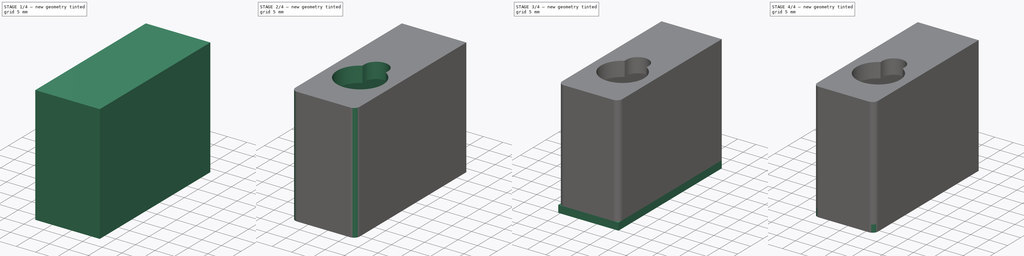
[diagram: build sequence overview — one tinted view per stage of 4, left to right]
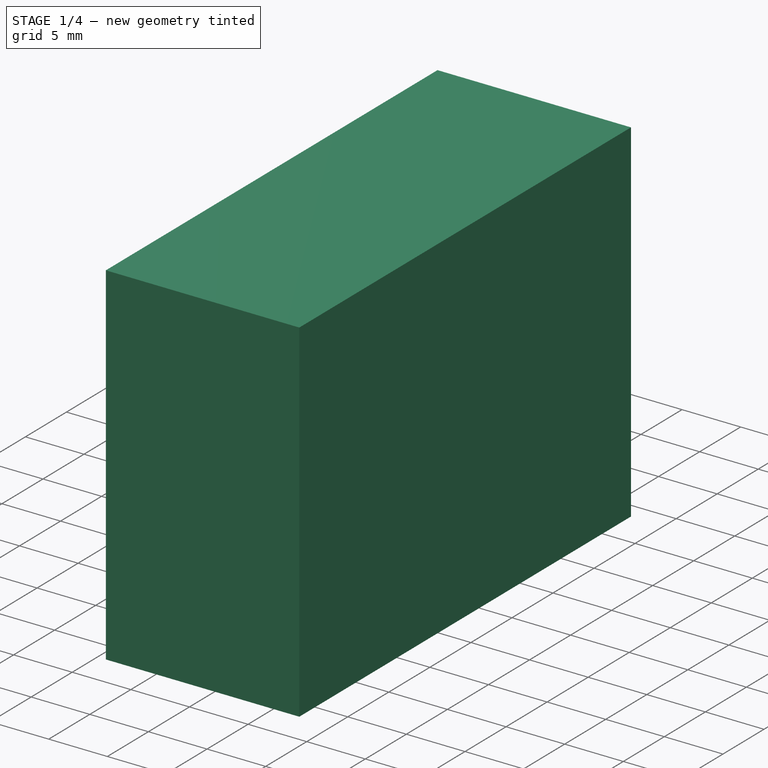
[diagram: stage 1 of 4 — iso view after this stage's code; geometry added in this stage tinted green]
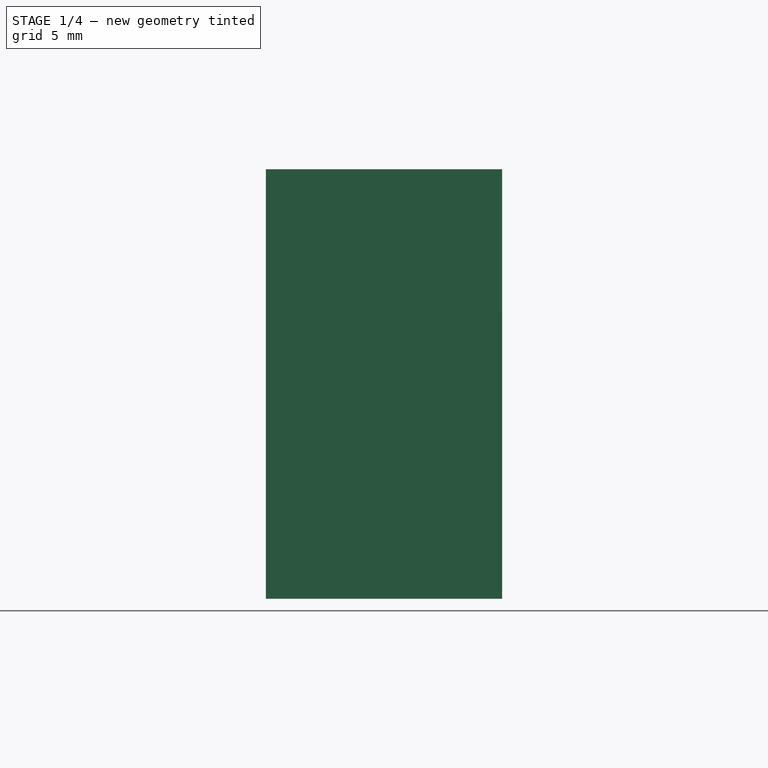
[diagram: stage 1 of 4 — front view after this stage's code; geometry added in this stage tinted green]
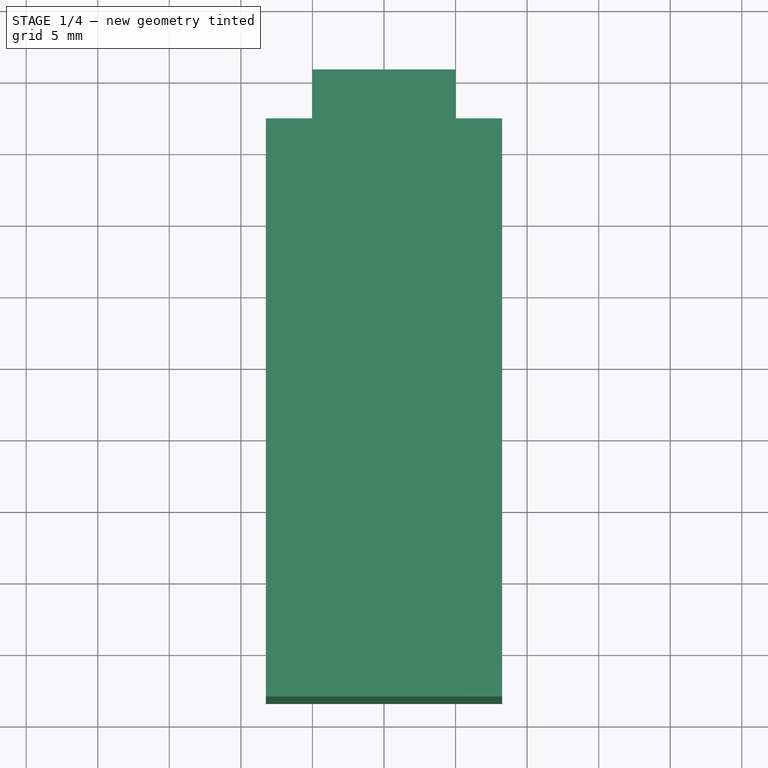
[diagram: stage 1 of 4 — top view after this stage's code; geometry added in this stage tinted green]
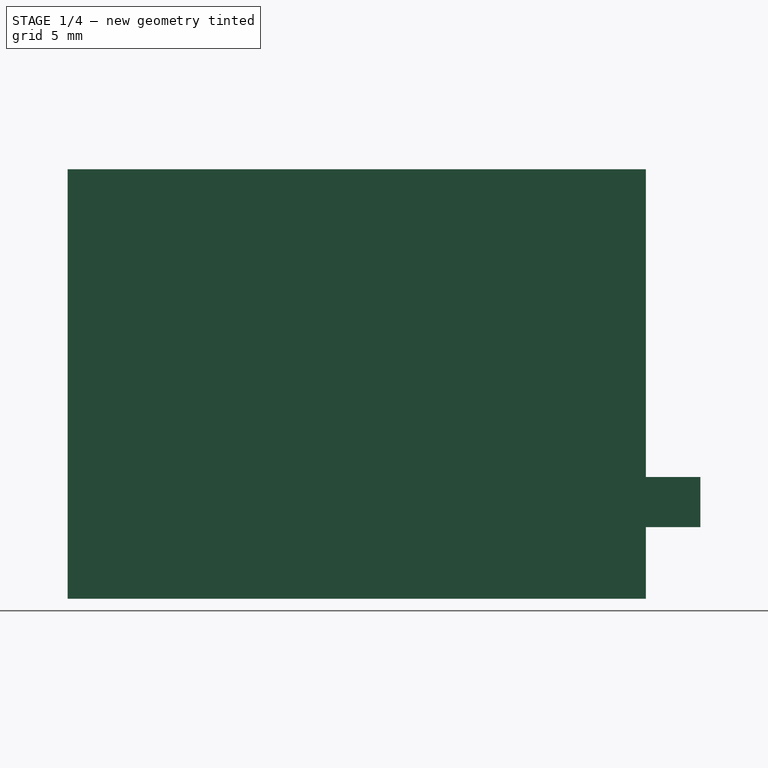
[diagram: stage 1 of 4 — right view after this stage's code; geometry added in this stage tinted green]
FCSTD DOCUMENT  (FreeCAD 0.18R16131 (Git))
Label: Caja servo SG90 (2)
License: Public Domain
LicenseURL: http://en.wikipedia.org/wiki/Public_domain
objects: Sketcher::SketchObject×3, Part::Extrusion×3, Part::Feature×3, PartDesign::Pad×2, Part::Offset2D×2, Part::MultiFuse×2, Part::Part2DObjectPython×2, Part::Fillet×2, Part::Box×2, Part::Cut×2, PartDesign::Body×1, Part::Thickness×1, App::DocumentObjectGroup×1
note: 27 computed .brp shape members not serialized (recipe doc carries the construction recipe); baked Part::Feature solids carry a one-line shape summary decoded from their .brp

FEATURE [Sketcher::SketchObject] Sketch  label="Boceto cabeza servo"
  MapMode = 5
  Support = -> [XY_Plane]
  sketch-geometry (8):
    g0: ArcOfCircle CenterX=0 CenterY=0 CenterZ=0 NormalX=0 NormalY=0 NormalZ=1 AngleXU=0 Radius=5.9 StartAngle=2.10421 EndAngle=7.32057
    g1: ArcOfCircle CenterX=0 CenterY=5.9 CenterZ=0 NormalX=0 NormalY=0 NormalZ=1 AngleXU=0 Radius=3 StartAngle=3e-16 EndAngle=3.14159
    g2: LineSegment StartX=3 StartY=5.9 StartZ=0 EndX=3 EndY=5.08035 EndZ=0
    g3: LineSegment StartX=-3 StartY=5.9 StartZ=0 EndX=-3 EndY=5.08035 EndZ=0
    g4: LineSegment StartX=-6.25 StartY=-11.4 StartZ=0 EndX=6.25 EndY=-11.4 EndZ=0
    g5: LineSegment StartX=-6.25 StartY=25 StartZ=0 EndX=-6.25 EndY=-11.4 EndZ=0
    g6: LineSegment StartX=-6.25 StartY=25 StartZ=0 EndX=6.25 EndY=25 EndZ=0
    g7: LineSegment StartX=6.25 StartY=25 StartZ=0 EndX=6.25 EndY=-11.4 EndZ=0
  constraints (22):
    c: Coincident(g0,g-1)
    c: Radius(g0) = 5.9
    c: PointOnObject(g1,g-2)
    c: PointOnObject(g1,g0)
    c: Coincident(g2,g0)
    c: Vertical(g2)
    c: Coincident(g3,g0)
    c: Vertical(g3)
    c: Radius(g1) = 3
    c: DistanceX(g4,g4) = 12.5
    c: Symmetric(g4,g4,g-2)
    c: Vertical(g5)
    c: Coincident(g5,g4)
    c: Coincident(g6,g5)
    c: Horizontal(g6)
    c: Coincident(g7,g6)
    c: Coincident(g7,g4)
    c: Vertical(g7)
    c: Tangent(g3,g1) = -1.5708
    c: Tangent(g1,g2) = 1.5708
    c: DistanceY(g0,g6) = 25
    c: DistanceY(g4,g0) = 11.4
FEATURE [PartDesign::Pad] Pad  label="extrusion Parte superios servo (cabeza)"
  Length = 4
  Length2 = 100
  Profile = -> Sketch
  Refine = true
  Type = 0
FEATURE [Sketcher::SketchObject] Sketch001  label="Boceto soprte tornillos servo"
  ExternalGeometry = -> [Pad]
  MapMode = 5
  Placement = pos=(0,0,0) rot=(1,0,0;3.14159rad)
  Support = -> [Pad]
  sketch-geometry (11):
    g0: LineSegment StartX=-6.25 StartY=11.4 StartZ=0 EndX=6.25 EndY=11.4 EndZ=0
    g1: LineSegment StartX=6.25 StartY=5.9 StartZ=0 EndX=-6.25 EndY=5.9 EndZ=0
    g2: LineSegment StartX=6.25 StartY=11.4 StartZ=0 EndX=6.25 EndY=5.9 EndZ=0
    g3: LineSegment StartX=-6.25 StartY=11.4 StartZ=0 EndX=-6.25 EndY=5.9 EndZ=0
    g4: LineSegment StartX=6.25 StartY=-25 StartZ=0 EndX=-6.25 EndY=-25 EndZ=0
    g5: LineSegment StartX=-6.25 StartY=-25 StartZ=0 EndX=-6.25 EndY=-17.6 EndZ=0
    g6: LineSegment StartX=-6.25 StartY=-17.6 StartZ=0 EndX=6.25 EndY=-17.6 EndZ=0
    g7: LineSegment StartX=6.25 StartY=-17.6 StartZ=0 EndX=6.25 EndY=-25 EndZ=0
    g8: LineSegment [constr] StartX=6.25 StartY=-17.6 StartZ=0 EndX=6.25 EndY=5.9 EndZ=0
    g9: Circle CenterX=0 CenterY=7.9 CenterZ=0 NormalX=0 NormalY=0 NormalZ=1 AngleXU=0 Radius=0.75
    g10: Circle CenterX=0 CenterY=-19.6 CenterZ=0 NormalX=0 NormalY=0 NormalZ=1 AngleXU=0 Radius=0.75
  constraints (31):
    c: Horizontal(g0)
    c: Horizontal(g1)
    c: PointOnObject(g1,g-5)
    c: Tangent(g1,g-6)
    c: Vertical(g2)
    c: Coincident(g0,g2)
    c: DistanceY(g2,g2) = 5.5
    c: Coincident(g3,g0)
    c: Coincident(g3,g1)
    c: Vertical(g3)
    c: PointOnObject(g1,g-4)
    c: Coincident(g1,g2)
    c: Coincident(g4,g7)
    c: Horizontal(g4)
    c: Coincident(g5,g4)
    c: PointOnObject(g5,g-4)
    c: Coincident(g6,g5)
    c: Horizontal(g6)
    c: Coincident(g7,g6)
    c: Coincident(g8,g6)
    c: Coincident(g8,g1)
    c: Vertical(g8)
    c: DistanceY(g8,g8) = 23.5
    c: PointOnObject(g4,g-5)
    c: Coincident(g4,g-4)
    c: PointOnObject(g9,g-2)
    c: Radius(g9) = 0.75
    c: Radius(g10) = 0.75
    c: DistanceY(g10,g9) = 27.5
    c: DistanceY(g1,g9) = 2
    c: PointOnObject(g10,g-2)
FEATURE [PartDesign::Pad] Pad001  label="Extrusion soporte tornillos"
  BaseFeature = -> Pad
  Length = 4
  Length2 = 100
  Profile = -> Sketch001
  Refine = true
  Type = 0
FEATURE [Sketcher::SketchObject] Sketch002
  ExternalGeometry = -> [Pad001]
  MapMode = 5
  Placement = pos=(0,0,4) rot=(0,0,1;0rad)
  Support = -> [Pad001]
  sketch-geometry (4):
    g0: LineSegment StartX=-6.25 StartY=25 StartZ=0 EndX=6.25 EndY=25 EndZ=0
    g1: LineSegment StartX=6.25 StartY=25 StartZ=0 EndX=6.25 EndY=-11.4 EndZ=0
    g2: LineSegment StartX=6.25 StartY=-11.4 StartZ=0 EndX=-6.25 EndY=-11.4 EndZ=0
    g3: LineSegment StartX=-6.25 StartY=-11.4 StartZ=0 EndX=-6.25 EndY=25 EndZ=0
  constraints (10):
    c: Coincident(g0,g1)
    c: Coincident(g1,g2)
    c: Coincident(g2,g3)
    c: Coincident(g3,g0)
    c: Horizontal(g0)
    c: Horizontal(g2)
    c: Vertical(g1)
    c: Vertical(g3)
    c: Coincident(g0,g-3)
    c: Coincident(g1,g-4)
FEATURE [PartDesign::Body] Body  label="Soporte servo caja"
  Group = -> [Sketch,Pad,Sketch001,Pad001,Sketch002]
  Origin = -> Origin
  Tip = -> Pad001
FEATURE [Part::Offset2D] Offset2D
  Fill = false
  Intersection = true
  Join = 2
  Mode = 1
  SelfIntersection = false
  Source = -> Sketch002
  Value = 2
FEATURE [Part::Extrusion] Extrude
  Base = -> Offset2D
  Dir = (0,0,1)
  DirMode = 2
  FaceMakerClass = Part::FaceMakerBullseye
  LengthFwd = 30
  LengthRev = 0
  Reversed = true
  Solid = true
  Symmetric = false
FEATURE [Part::Box] Box001  label="Cubo001"
  AttacherType = Attacher::AttachEngine3D
  Height = 10
  Length = 10
  Placement = pos=(-5,30.8,-21) rot=(1,0,0;1.5708rad)
  Width = 3.5
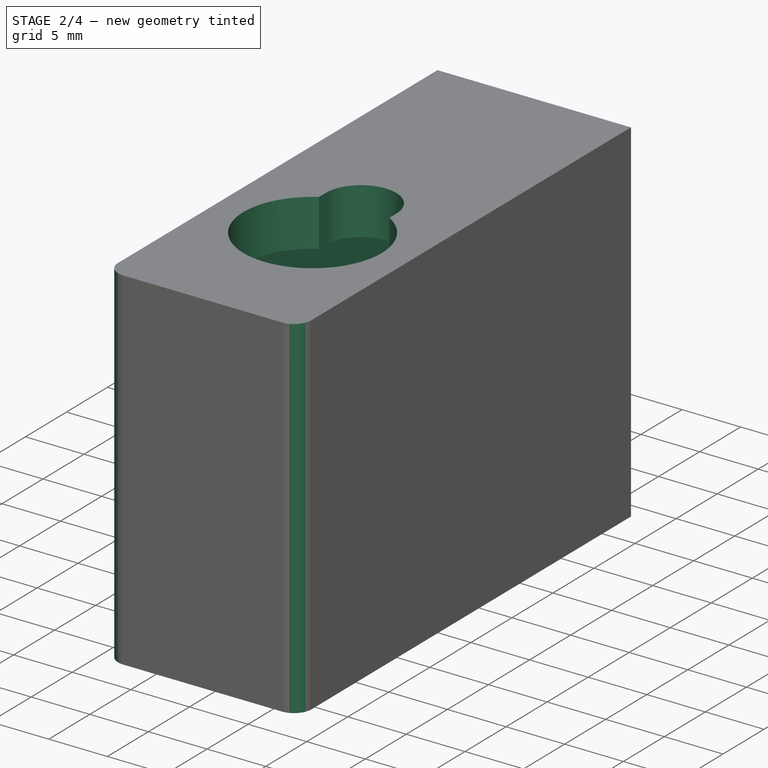
[diagram: stage 2 of 4 — iso view after this stage's code; geometry added in this stage tinted green]
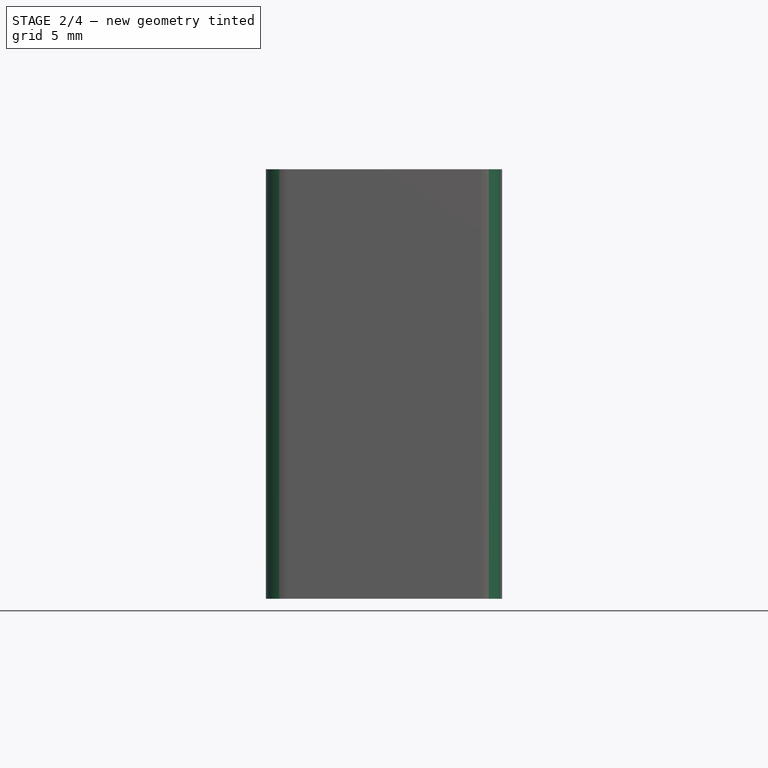
[diagram: stage 2 of 4 — front view after this stage's code; geometry added in this stage tinted green]
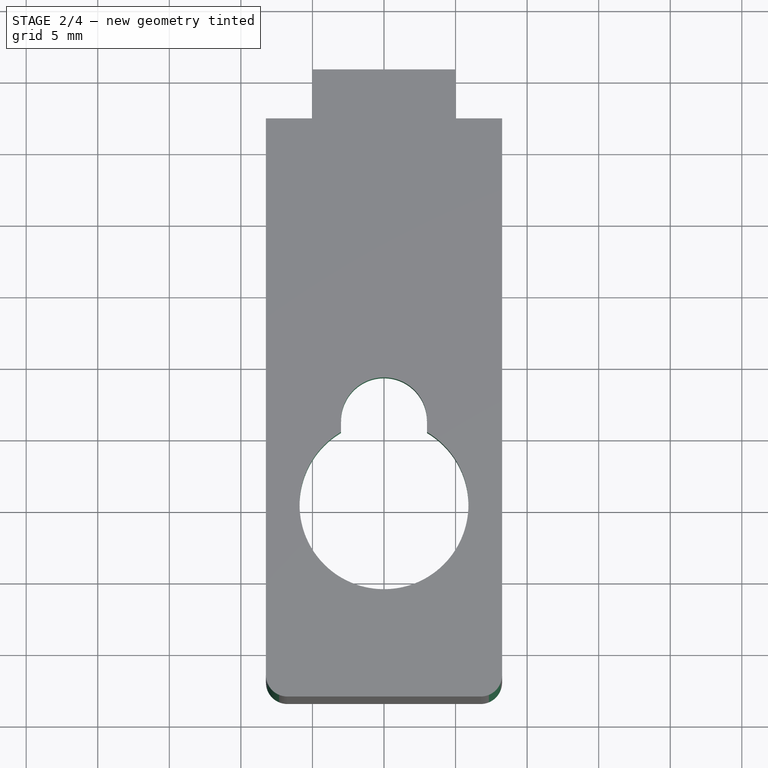
[diagram: stage 2 of 4 — top view after this stage's code; geometry added in this stage tinted green]
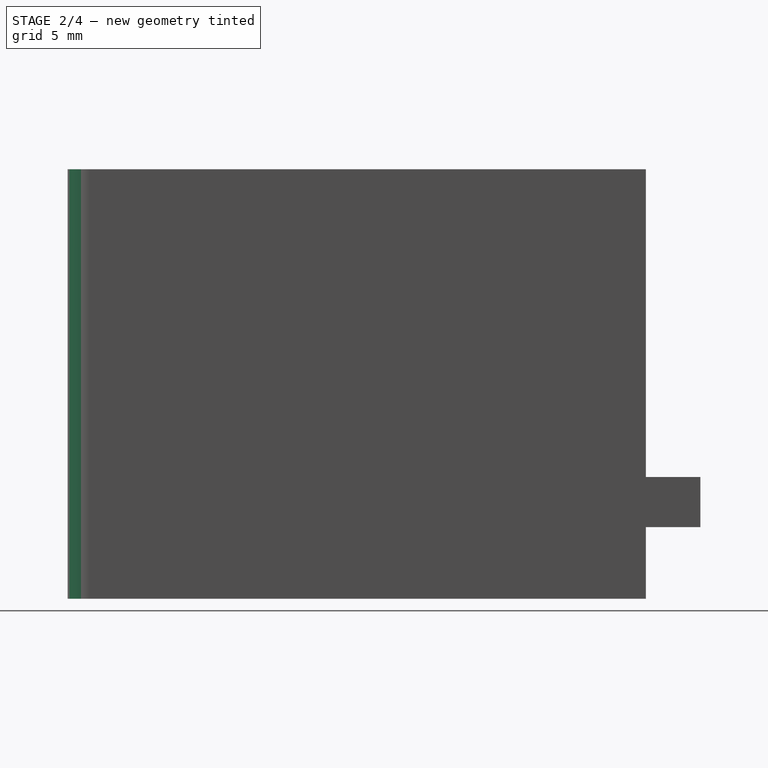
[diagram: stage 2 of 4 — right view after this stage's code; geometry added in this stage tinted green]
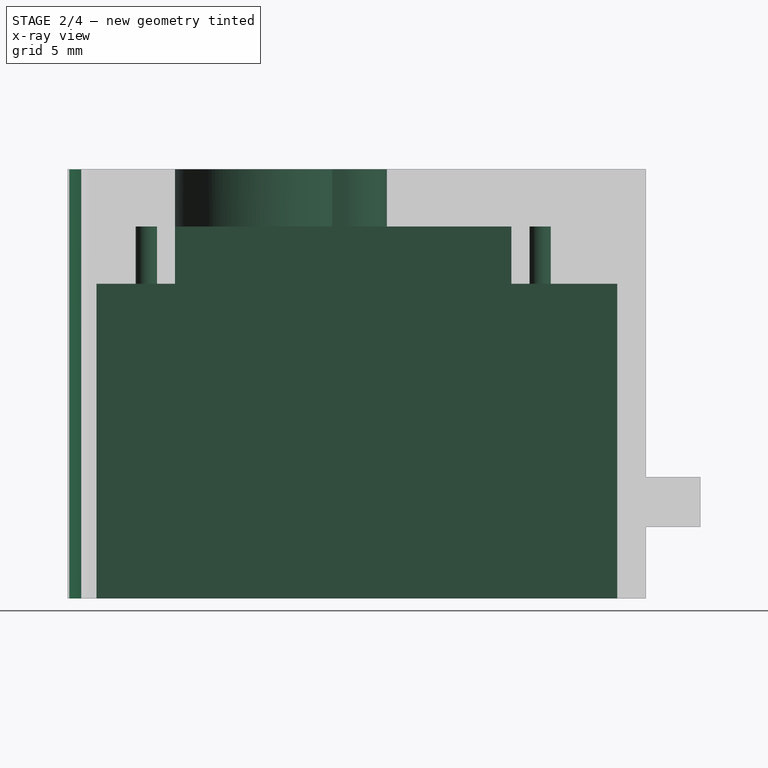
[diagram: stage 2 of 4 — x-ray composite at the right view; earlier geometry ghosted, this stage's added geometry solid]
FEATURE [Part::Thickness] Thickness  label="Caja base"
  Faces = -> Extrude [Face5,Face6]
  Intersection = false
  Join = 0
  Mode = 0
  SelfIntersection = false
  Value = -2
FEATURE [Part::MultiFuse] Fusion  label="caja completa sion redondear"
  Refine = true
  Shapes = -> [Pad001,Thickness]
FEATURE [Part::Fillet] Fillet  label="Redondeo esquinas caja"
  Base = -> Fusion
  Edges = 2 edges r=1.5: [Edge48,Edge50]
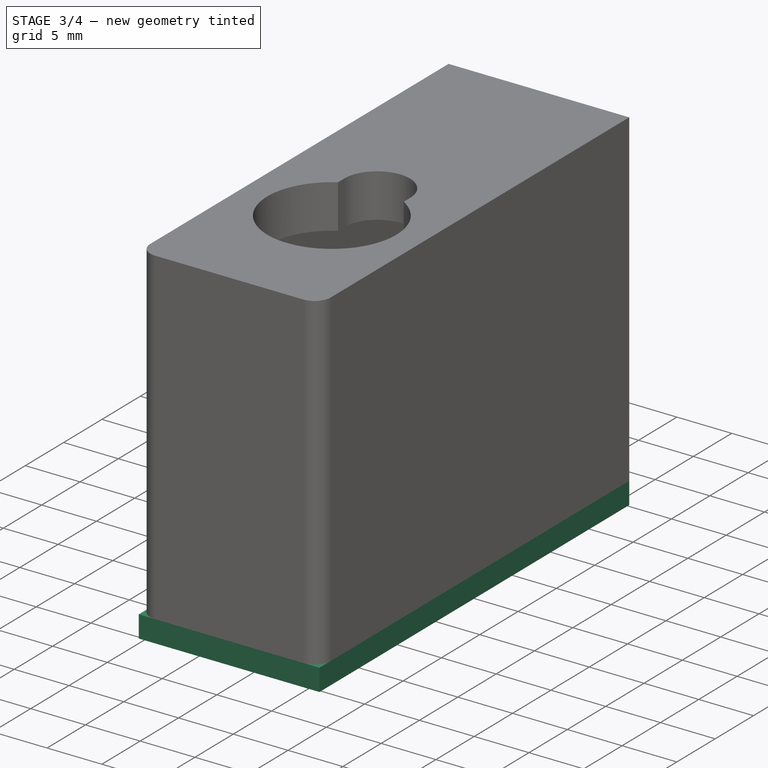
[diagram: stage 3 of 4 — iso view after this stage's code; geometry added in this stage tinted green]
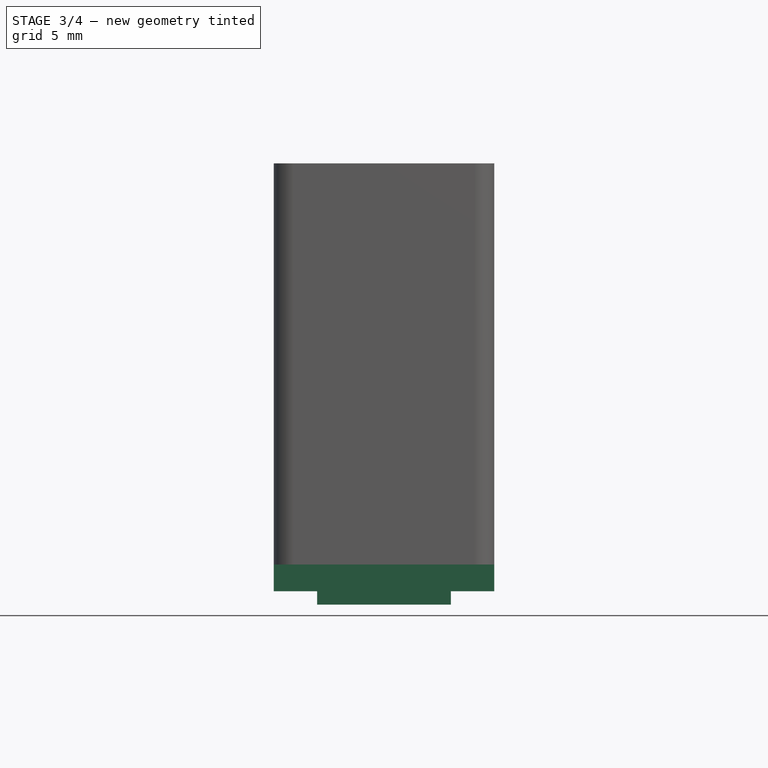
[diagram: stage 3 of 4 — front view after this stage's code; geometry added in this stage tinted green]
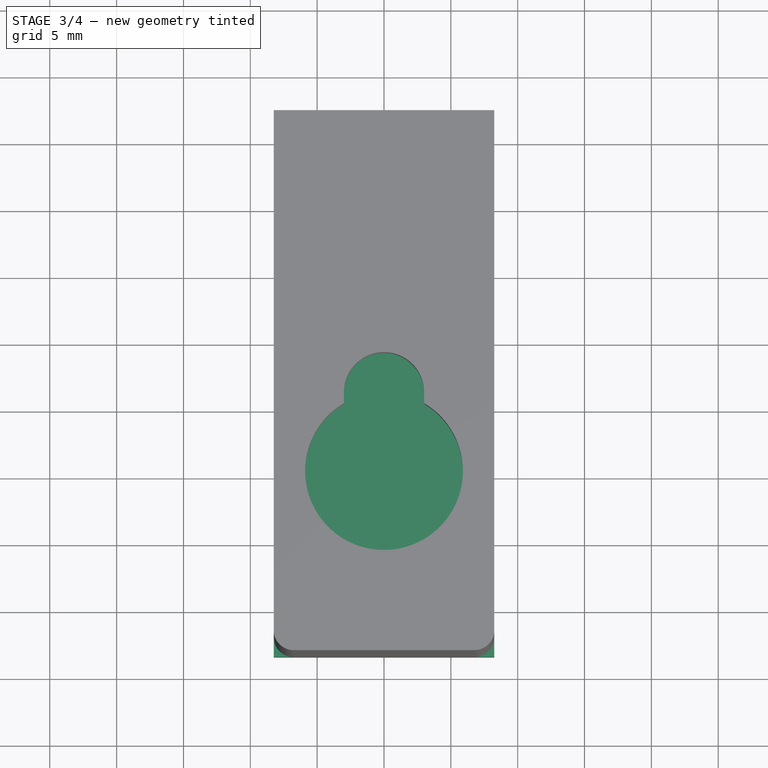
[diagram: stage 3 of 4 — top view after this stage's code; geometry added in this stage tinted green]
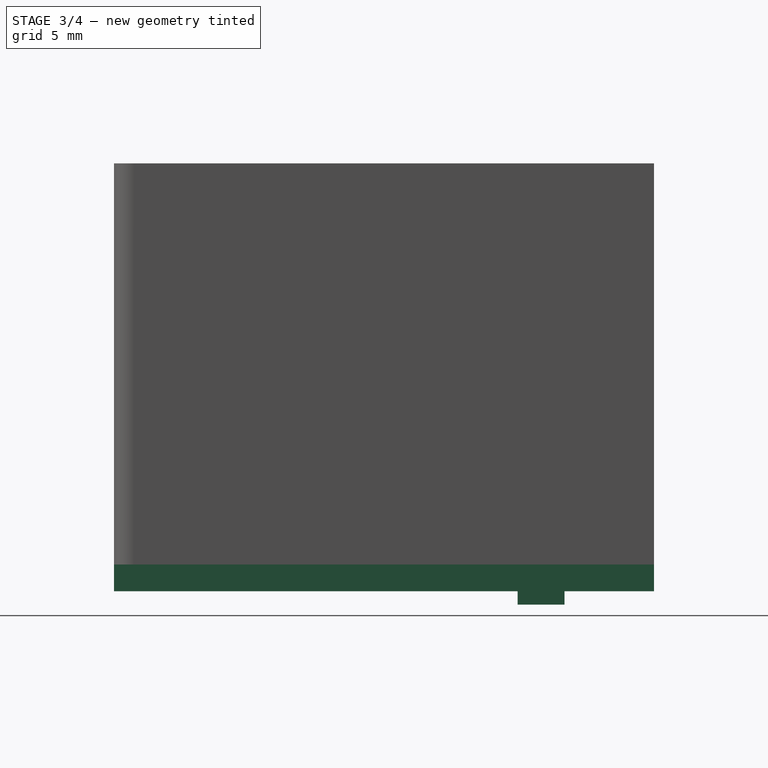
[diagram: stage 3 of 4 — right view after this stage's code; geometry added in this stage tinted green]
FEATURE [Part::Part2DObjectPython] Wire  label="Exterior tapa"  # Draft 2D object (typed FeaturePython)
  ChamferSize = 0
  Closed = true
  End = (8.25,-13.4,-26)
  FilletRadius = 0
  Length = 113.8
  MakeFace = true
  Placement = pos=(8.25,27,-26) rot=(1,0,0;3.14159rad)
  Points = (4) [(0,0,0),(-16.5,0,0),(-16.5,40.4,0),(-3.55271e-15,40.4,0)]
  Start = (8.25,27,-26)
  Subdivisions = 0
  Support = -> [Fusion]
FEATURE [Part::Extrusion] Extrude003  label="Extrusion exterior tapa"
  Base = -> Wire
  Dir = (0,0,-1)
  DirMode = 2
  FaceMakerClass = Part::FaceMakerBullseye
  LengthFwd = 2
  LengthRev = 0
  Solid = false
  Symmetric = false
FEATURE [Part::Box] Box  label="Cubo"
  AttacherType = Attacher::AttachEngine3D
  Height = 10
  Length = 10
  Placement = pos=(-5,16.8,-29) rot=(0,0,1;0rad)
  Width = 3.5
FEATURE [Part::Cut] Cut001  label="Caja con salida cable"
  Base = -> Fillet
  Refine = true
  Tool = -> Box001
FEATURE [App::DocumentObjectGroup] Group  label="SRC"
  Group = -> [Line,Cut,Cut001,Body]
FEATURE [Part::Feature] Fusion007001  label="Servo-sg90-final"
  Placement = pos=(0,16.65,-22.7) rot=(0,0,1;3.14159rad)
  shape: bbox 11.8 x 32.4 x 29.9 mm, 77 faces (baked)
FEATURE [Part::Feature] Cut001002  label="Tapa"
  shape: bbox 16.5 x 40.4 x 4 mm, 17 faces (baked)
FEATURE [Part::Feature] Cut001003  label="Caja"
  shape: bbox 16.5 x 40.4 x 30 mm, 29 faces (baked)
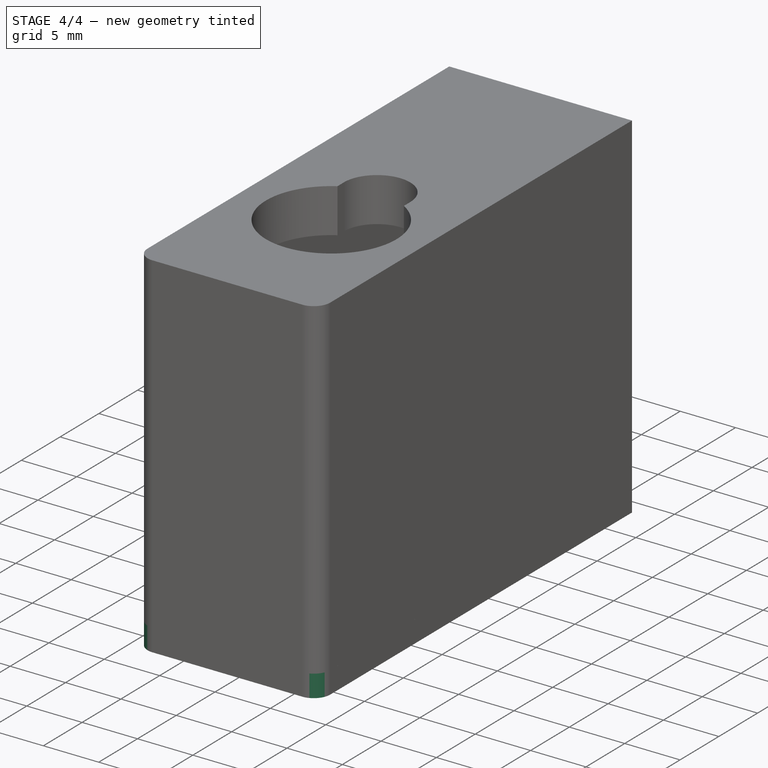
[diagram: stage 4 of 4 — iso view after this stage's code; geometry added in this stage tinted green]
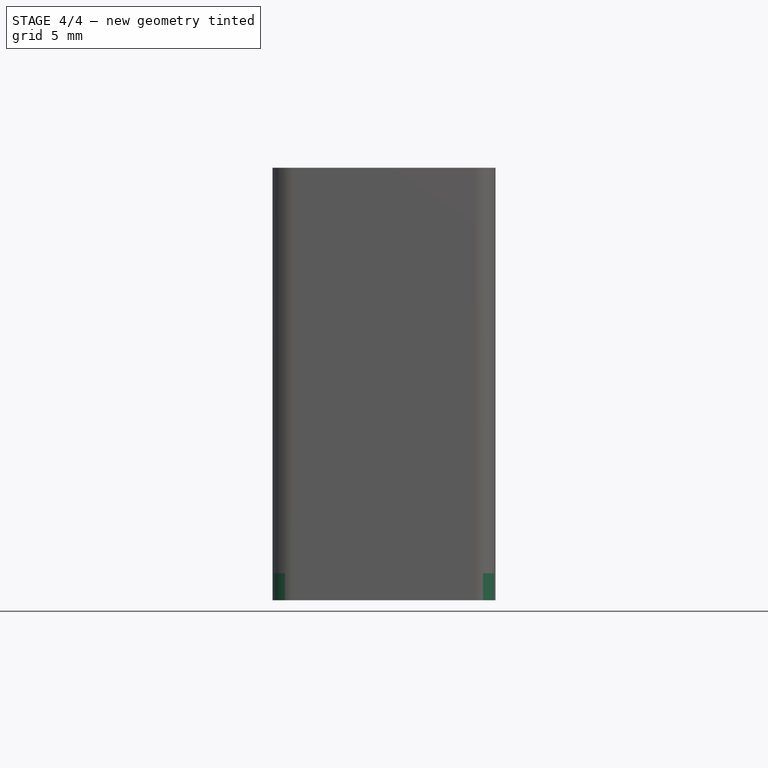
[diagram: stage 4 of 4 — front view after this stage's code; geometry added in this stage tinted green]
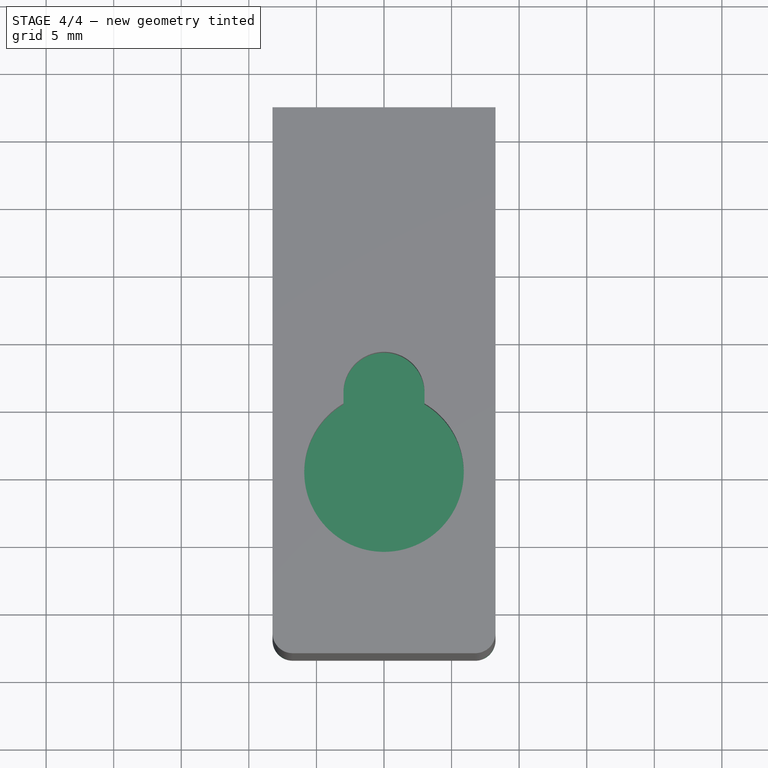
[diagram: stage 4 of 4 — top view after this stage's code; geometry added in this stage tinted green]
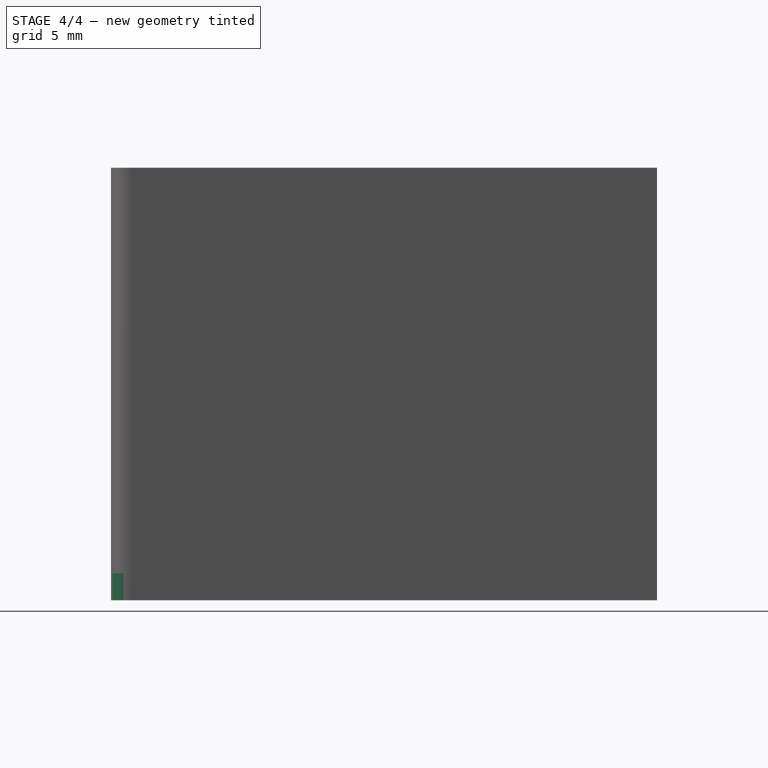
[diagram: stage 4 of 4 — right view after this stage's code; geometry added in this stage tinted green]
FEATURE [Part::Offset2D] Offset2D001  label="Offset interior tapa"
  Fill = false
  Intersection = false
  Join = 2
  Mode = 1
  SelfIntersection = false
  Value = -0.1
FEATURE [Part::Extrusion] Extrude002  label="Interior tapa"
  Base = -> Offset2D001
  Dir = (0,0,1)
  DirMode = 2
  FaceMakerClass = Part::FaceMakerBullseye
  LengthFwd = 2
  LengthRev = 0
  Reversed = true
  Solid = true
  Symmetric = false
FEATURE [Part::MultiFuse] Fusion001  label="Tapa sin redondear"
  Refine = true
  Shapes = -> [Extrude002,Extrude003]
FEATURE [Part::Fillet] Fillet001  label="Redondeo esquina tapa"
  Base = -> Fusion001
  Edges = 2 edges r=1.5: [Edge5,Edge8]
FEATURE [Part::Part2DObjectPython] Line  # Draft 2D object (typed FeaturePython)
  ChamferSize = 0
  Closed = false
  End = (-1.6e-15,16.8,-28)
  FilletRadius = 0
  Length = 10.2
  MakeFace = true
  Placement = pos=(-4e-15,27,-28) rot=(1,0,0;3.14159rad)
  Points = (2) [(0,0,0),(2.43736e-15,10.2,0)]
  Start = (-3.9e-15,27,-28)
  Subdivisions = 0
  Support = -> [Fillet001]
FEATURE [Part::Cut] Cut  label="Tapa con salida cable"
  Base = -> Fillet001
  Refine = true
  Tool = -> Box
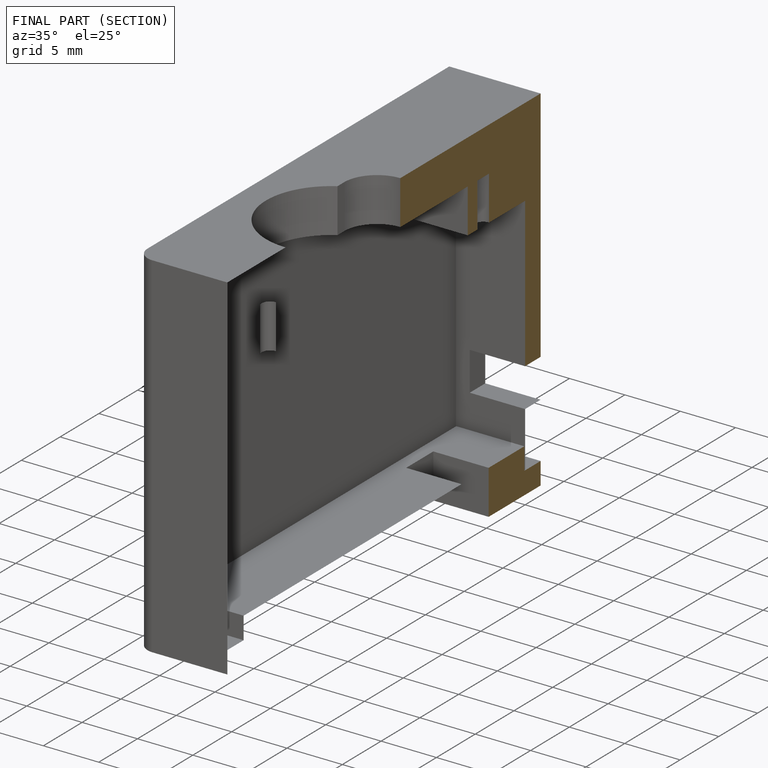
[diagram: finished part — half-section view (interior)]
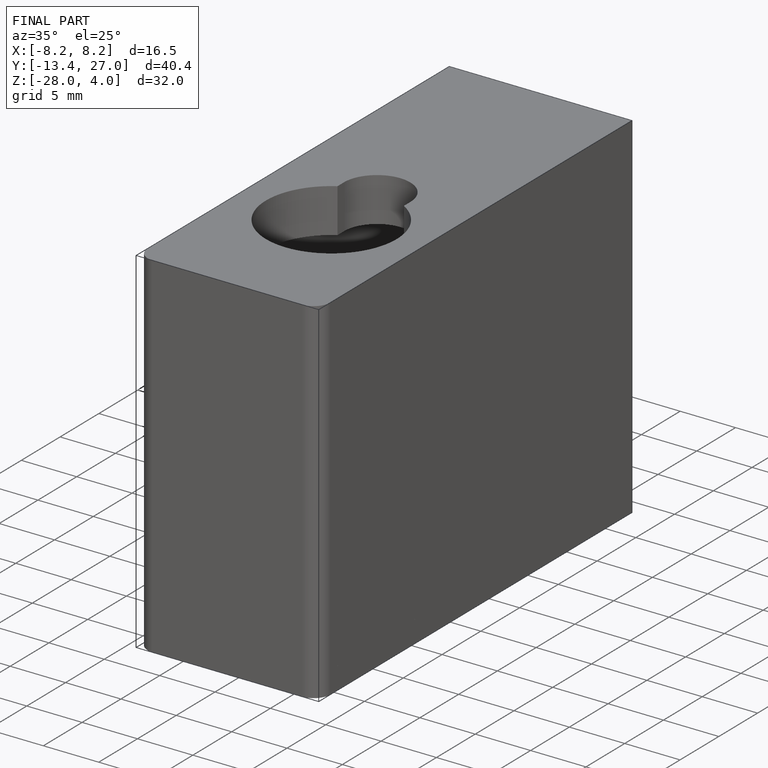
[diagram: finished part — iso view with bounding-box wireframe]
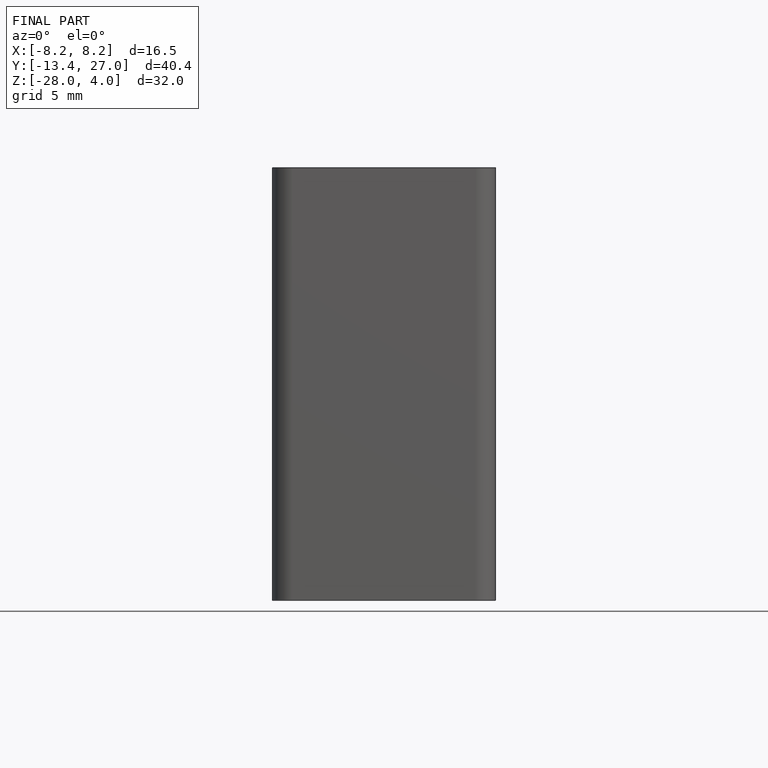
[diagram: finished part — front view with bounding-box wireframe]
